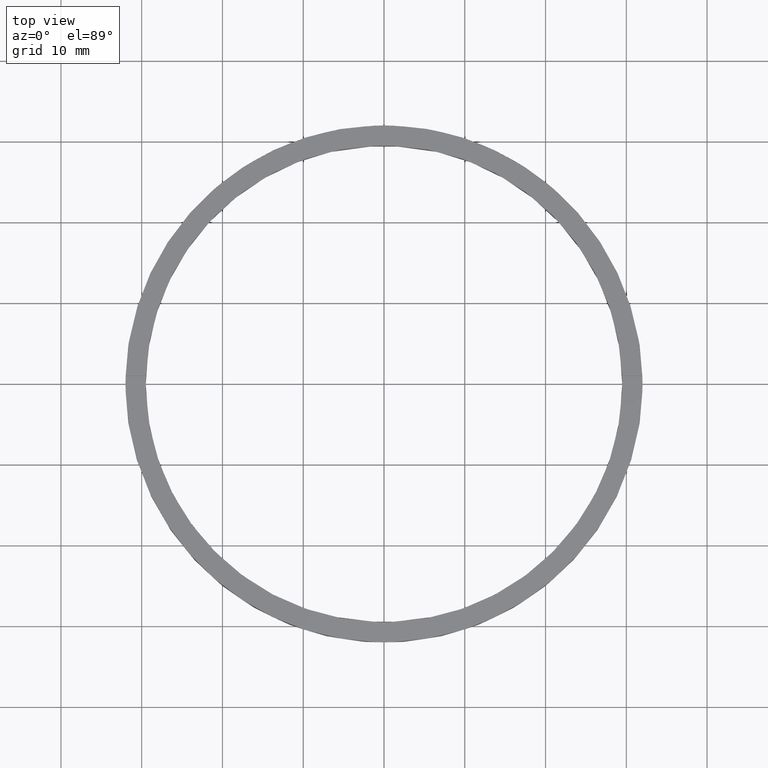
[diagram: clean part render]
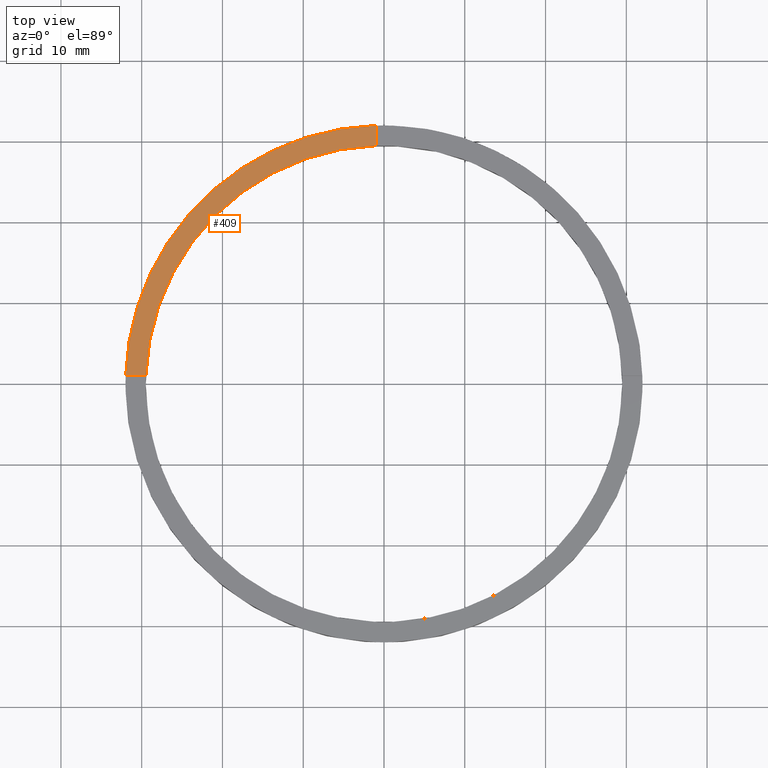
[diagram: same view with one face highlighted and labeled with its STEP entity id]
A machine part, top view. The second image highlights one B-rep face of the part: STEP entity #409.
In plain terms, the highlighted planar face has unit normal (0, 0, 1).
Its self-contained STEP definition (entity closure, byte-faithful):
#9 = DIRECTION ( 'NONE',  ( 1.000000000000000000, 0.000000000000000000, -0.000000000000000000 ) ) ;
#10 = VECTOR ( 'NONE', #338, 1000.000000000000000 ) ;
#37 = VERTEX_POINT ( 'NONE', #202 ) ;
#62 = DIRECTION ( 'NONE',  ( 1.000000000000000000, 0.000000000000000000, 0.000000000000000000 ) ) ;
#66 = CARTESIAN_POINT ( 'NONE',  ( 0.000000000000000000, 0.000000000000000000, 3.000000000000000000 ) ) ;
#80 = DIRECTION ( 'NONE',  ( 0.000000000000000000, 0.000000000000000000, 1.000000000000000000 ) ) ;
#121 = EDGE_LOOP ( 'NONE', ( #245, #132, #173, #230 ) ) ;
#131 = EDGE_CURVE ( 'NONE', #302, #700, #627, .T. ) ;
#132 = ORIENTED_EDGE ( 'NONE', *, *, #131, .T. ) ;
#133 = CARTESIAN_POINT ( 'NONE',  ( 0.000000000000000000, 0.000000000000000000, 3.000000000000000000 ) ) ;
#173 = ORIENTED_EDGE ( 'NONE', *, *, #735, .F. ) ;
#202 = CARTESIAN_POINT ( 'NONE',  ( -29.48304597561114093, 0.9999999999999746869, 3.000000000000000000 ) ) ;
#230 = ORIENTED_EDGE ( 'NONE', *, *, #256, .F. ) ;
#245 = ORIENTED_EDGE ( 'NONE', *, *, #714, .F. ) ;
#256 = EDGE_CURVE ( 'NONE', #484, #37, #722, .T. ) ;
#288 = DIRECTION ( 'NONE',  ( -0.000000000000000000, -1.000000000000000000, -0.000000000000000000 ) ) ;
#290 = FACE_OUTER_BOUND ( 'NONE', #121, .T. ) ;
#302 = VERTEX_POINT ( 'NONE', #716 ) ;
#304 = LINE ( 'NONE', #587, #779 ) ;
#338 = DIRECTION ( 'NONE',  ( -1.000000000000000000, -1.951563910473908228E-16, 0.000000000000000000 ) ) ;
#342 = CARTESIAN_POINT ( 'NONE',  ( -31.98437118343894880, 0.9999999999999742428, 3.000000000000000000 ) ) ;
#346 = DIRECTION ( 'NONE',  ( 0.000000000000000000, 0.000000000000000000, 1.000000000000000000 ) ) ;
#367 = CARTESIAN_POINT ( 'NONE',  ( -22.00000000000018119, 0.9999999999999761302, 3.000000000000000000 ) ) ;
#409 = ADVANCED_FACE ( 'NONE', ( #290 ), #683, .T. ) ;
#452 = AXIS2_PLACEMENT_3D ( 'NONE', #66, #606, #62 ) ;
#484 = VERTEX_POINT ( 'NONE', #605 ) ;
#493 = CARTESIAN_POINT ( 'NONE',  ( 0.000000000000000000, 0.000000000000000000, 3.000000000000000000 ) ) ;
#519 = LINE ( 'NONE', #367, #10 ) ;
#575 = AXIS2_PLACEMENT_3D ( 'NONE', #493, #80, #719 ) ;
#587 = CARTESIAN_POINT ( 'NONE',  ( -1.000000000000024425, 22.00000000000000000, 3.000000000000000000 ) ) ;
#605 = CARTESIAN_POINT ( 'NONE',  ( -1.000000000000024425, 29.48304597561113738, 3.000000000000000000 ) ) ;
#606 = DIRECTION ( 'NONE',  ( 0.000000000000000000, 0.000000000000000000, 1.000000000000000000 ) ) ;
#627 = CIRCLE ( 'NONE', #575, 32.00000000000000000 ) ;
#660 = AXIS2_PLACEMENT_3D ( 'NONE', #133, #346, #9 ) ;
#683 = PLANE ( 'NONE',  #660 ) ;
#700 = VERTEX_POINT ( 'NONE', #342 ) ;
#714 = EDGE_CURVE ( 'NONE', #302, #484, #304, .T. ) ;
#716 = CARTESIAN_POINT ( 'NONE',  ( -1.000000000000024425, 31.98437118343894880, 3.000000000000000000 ) ) ;
#719 = DIRECTION ( 'NONE',  ( 1.000000000000000000, 0.000000000000000000, 0.000000000000000000 ) ) ;
#722 = CIRCLE ( 'NONE', #452, 29.50000000000000355 ) ;
#735 = EDGE_CURVE ( 'NONE', #37, #700, #519, .T. ) ;
#779 = VECTOR ( 'NONE', #288, 1000.000000000000000 ) ;